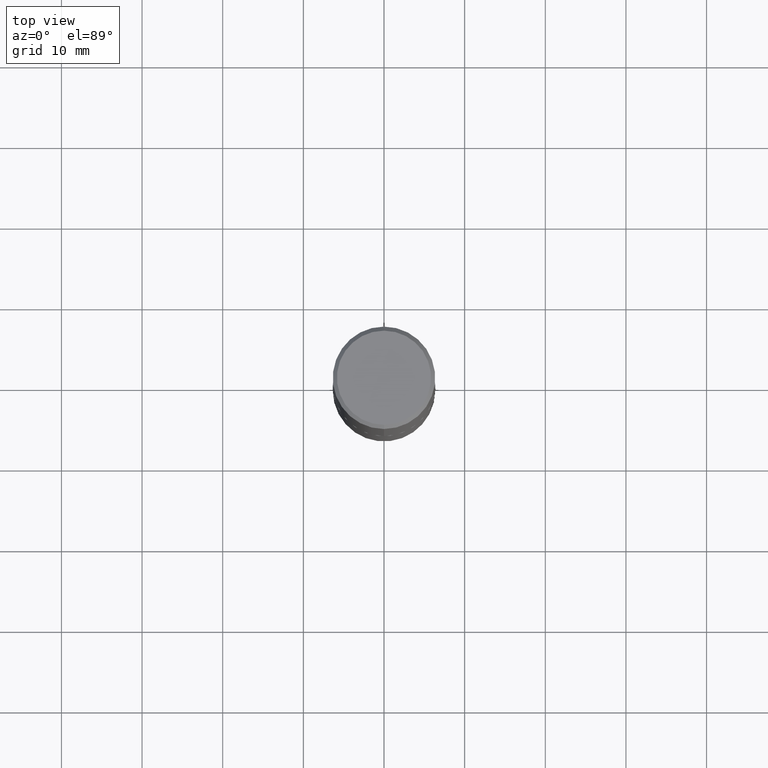
[diagram: clean part render]
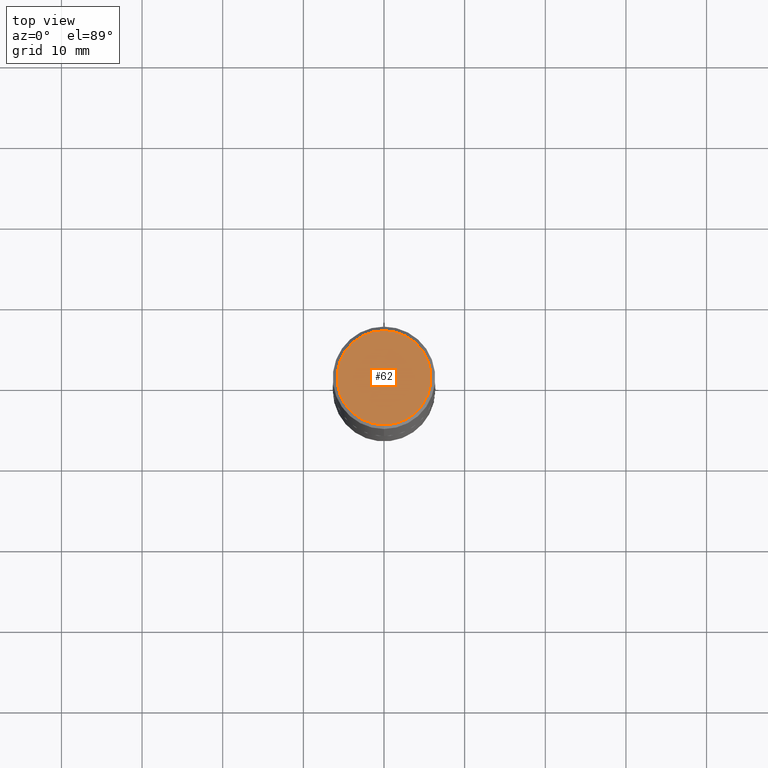
[diagram: same view with one face highlighted and labeled with its STEP entity id]
A machine part, top view. The second image highlights one B-rep face of the part: STEP entity #62.
In plain terms, the highlighted planar face has unit normal (0, -0, -1).
Its self-contained STEP definition (entity closure, byte-faithful):
#46 = VERTEX_POINT ( 'NONE', #343 ) ;
#60 = FACE_OUTER_BOUND ( 'NONE', #106, .T. ) ;
#62 = ADVANCED_FACE ( 'NONE', ( #60 ), #303, .F. ) ;
#75 = EDGE_CURVE ( 'NONE', #46, #168, #321, .T. ) ;
#76 = ORIENTED_EDGE ( 'NONE', *, *, #384, .T. ) ;
#106 = EDGE_LOOP ( 'NONE', ( #76, #222 ) ) ;
#109 = CIRCLE ( 'NONE', #353, 0.2299999999999999822 ) ;
#116 = DIRECTION ( 'NONE',  ( -6.982962677686265922E-15, -1.000000000000000000, 3.491097007558327207E-15 ) ) ;
#168 = VERTEX_POINT ( 'NONE', #216 ) ;
#177 = DIRECTION ( 'NONE',  ( 6.982962677686265922E-15, 1.000000000000000000, -3.491097007558327602E-15 ) ) ;
#185 = DIRECTION ( 'NONE',  ( -2.445737183286911680E-29, 3.491097007558327602E-15, 1.000000000000000000 ) ) ;
#216 = CARTESIAN_POINT ( 'NONE',  ( 1.675911042644703774E-15, 0.2299999999999999822, -8.286517828745257562E-16 ) ) ;
#222 = ORIENTED_EDGE ( 'NONE', *, *, #75, .T. ) ;
#228 = DIRECTION ( 'NONE',  ( -6.982962677686265922E-15, -1.000000000000000000, 3.491097007558327207E-15 ) ) ;
#246 = CARTESIAN_POINT ( 'NONE',  ( 1.606081415867841067E-15, 0.2299999999999999822, -8.158020473064706174E-16 ) ) ;
#265 = AXIS2_PLACEMENT_3D ( 'NONE', #275, #185, #116 ) ;
#275 = CARTESIAN_POINT ( 'NONE',  ( 6.285415214839433991E-46, -8.971934677910720830E-32, -2.569947113611056727E-17 ) ) ;
#303 = PLANE ( 'NONE',  #344 ) ;
#321 = CIRCLE ( 'NONE', #265, 0.2299999999999999822 ) ;
#343 = CARTESIAN_POINT ( 'NONE',  ( -1.646519519465166968E-15, -0.2299999999999999822, 7.772528406023046093E-16 ) ) ;
#344 = AXIS2_PLACEMENT_3D ( 'NONE', #246, #377, #177 ) ;
#350 = DIRECTION ( 'NONE',  ( -2.445737183286911680E-29, 3.491097007558327602E-15, 1.000000000000000000 ) ) ;
#353 = AXIS2_PLACEMENT_3D ( 'NONE', #385, #350, #228 ) ;
#377 = DIRECTION ( 'NONE',  ( 2.445737183286911400E-29, -3.491097007558327602E-15, -1.000000000000000000 ) ) ;
#384 = EDGE_CURVE ( 'NONE', #168, #46, #109, .T. ) ;
#385 = CARTESIAN_POINT ( 'NONE',  ( 6.285415214839433991E-46, -8.971934677910720830E-32, -2.569947113611056727E-17 ) ) ;